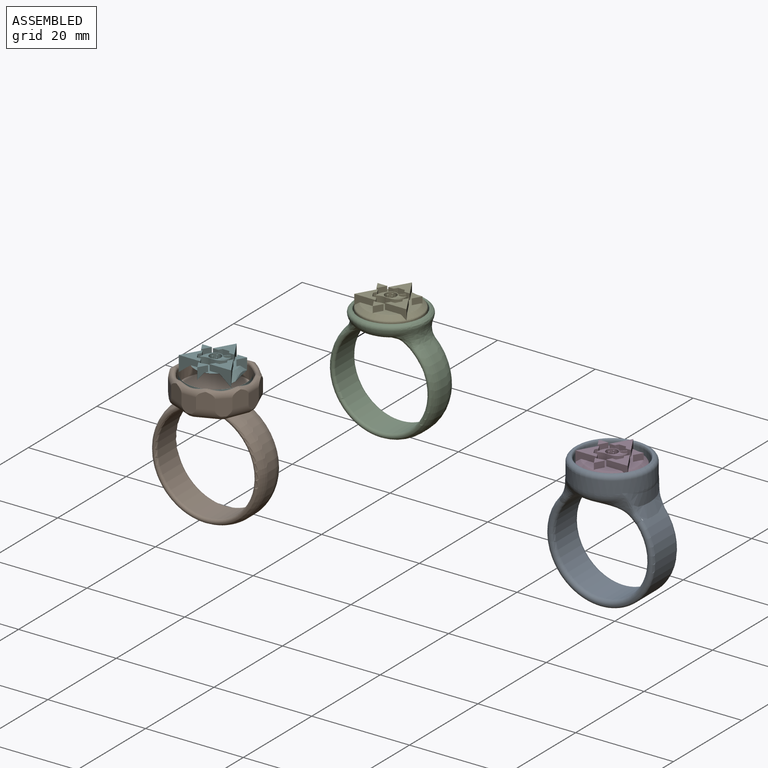
[diagram: assembled view]
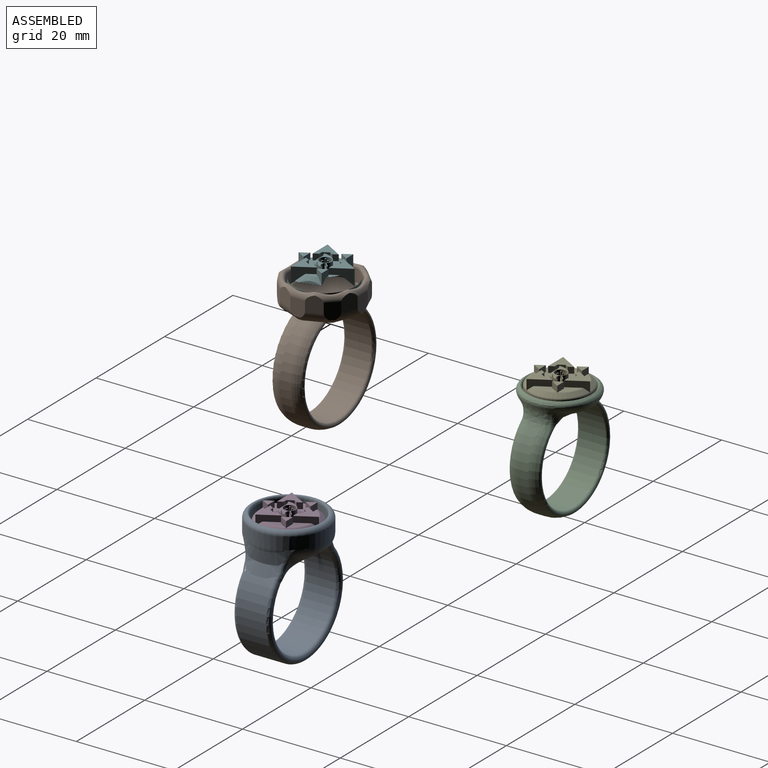
[diagram: assembled view, second angle]
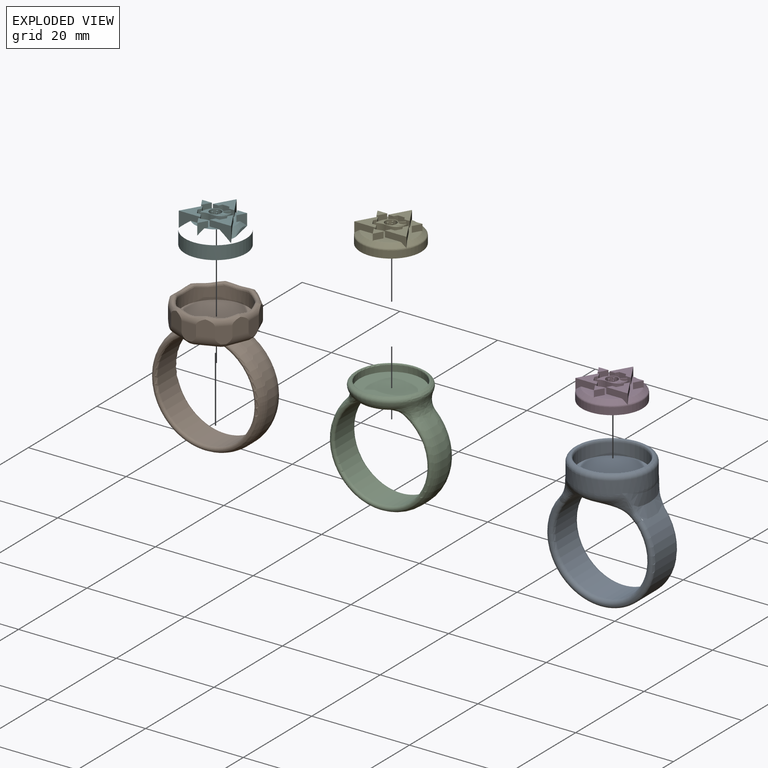
[diagram: exploded view]
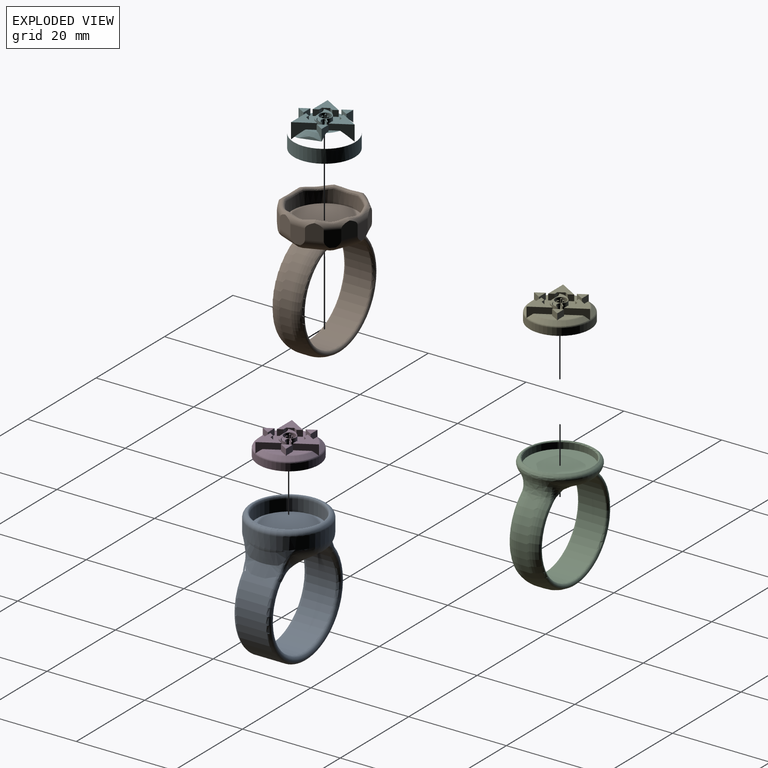
[diagram: exploded view, second angle]
ASSEMBLY  parts=6 mates=3
PART A: 36 faces, bbox 23.8x27.6x19.4 mm
  f0: torus R=10.5mm, axis (0,0,1), area 0.9mm2, adj f1,f34,f35
  f1: bspline ~15.54x3.42mm, area 16.6mm2, adj f0,f2,f31,f32,f33,f35
  f2: torus R=10.5mm, axis (0,0,1), area 0.9mm2, adj f1,f3,f35
  f3: bspline ~2.02x1.49mm, area 2.7mm2, adj f2,f4,f30,f31
  f4: torus R=10.25mm, axis (0,0,-1), area 109.3mm2, adj f3,f5,f34,f35
  f5: cylinder r=11mm len=22mm, axis (0,0,-1), area 297.3mm2, adj f4,f6,f29,f30
  f6: torus R=10.25mm, axis (0,0,-1), area 109.4mm2, adj f5,f7,f28,f35
  f7: bspline ~2.02x1.49mm, area 2.7mm2, adj f6,f8,f27,f29
  f8: bspline ~1.04x0.99mm, area 0.1mm2, adj f7,f9,f25,f29
  f9: bspline ~5.26x2.51mm, area 3.3mm2, adj f8,f10,f14,f29
  f10: bspline ~18.29x7.94mm, area 20.3mm2, adj f9,f11,f13,f14,f25
  f11: bspline ~5.11x2.41mm, area 3.3mm2, adj f10,f12,f14,f30
  f12: bspline ~0.83x0.75mm, area 0.1mm2, adj f11,f25,f28,f30
  f13: torus R=5.33mm, axis (0,-1,0), area 132.7mm2, adj f10,f14
  f14: cylinder r=7.83mm len=15.65mm, axis (0,1,0), area 122.5mm2, adj f9,f10,f11,f13,f15,f16,f17,f18
  f15: bspline ~5.26x2.51mm, area 3.3mm2, adj f14,f30,f31,f32
  f16: torus R=5.33mm, axis (0,-1,0), area 103mm2, adj f14,f30
  f17: torus R=5.33mm, axis (0,-1,0), area 103mm2, adj f14,f29
  f18: bspline ~5.11x2.41mm, area 3.3mm2, adj f14,f29,f32,f33
  f19: torus R=5.33mm, axis (0,-1,0), area 132.7mm2, adj f14,f32
  f20: torus R=6.83mm, axis (0,-1,0), area 63.6mm2, adj f14,f21
  f21: torus R=6.98mm, axis (0,1,0), area 17.9mm2, adj f20,f22
  f22: torus R=7.62mm, axis (0,-1,0), area 17.3mm2, adj f21,f23
  f23: cylinder r=6.62mm len=13.25mm, axis (0,1,0), area 99.9mm2, adj f22,f24
  f24: plane 13.25x13.25mm, normal (0,-1,0), area 137.9mm2, adj f23
  f25: bspline ~15.55x3.43mm, area 16.6mm2, adj f8,f10,f12,f26,f27,f35
  f26: torus R=10.5mm, axis (0,0,1), area 0.9mm2, adj f25,f28,f35
  f27: torus R=10.5mm, axis (0,0,1), area 0.9mm2, adj f7,f25,f35
  f28: bspline ~2.02x1.49mm, area 2.6mm2, adj f6,f12,f26,f30
  f29: bspline ~19.27x5.81mm, area 37.8mm2, adj f5,f7,f8,f9,f14,f17,f18,f33
  f30: bspline ~19.27x5.81mm, area 37.8mm2, adj f3,f5,f11,f12,f14,f15,f16,f28
  f31: bspline ~1.04x0.99mm, area 0.1mm2, adj f1,f3,f15,f30
  f32: bspline ~18.29x7.94mm, area 20.3mm2, adj f1,f14,f15,f18,f19
  f33: bspline ~0.83x0.75mm, area 0.1mm2, adj f1,f18,f29,f34
  f34: bspline ~2.02x1.49mm, area 2.6mm2, adj f0,f4,f29,f33
  f35: cylinder r=9.5mm len=19mm, axis (0,0,-1), area 392.3mm2, adj f0,f1,f2,f4,f6,f25,f26,f27
PART B: 64 faces, bbox 25.4x29.6x16.9 mm
  f0: plane 9.19x2.96mm, normal (0,1,0), area 9.8mm2, adj f16,f18,f20,f32,f33,f35,f37
  f1: plane 0.28x0.06mm, normal (0,1,0), area 0mm2, adj f3,f37,f39
  f2: plane 9.66x3.44mm, normal (0,1,0), area 9.8mm2, adj f17,f21,f23,f34,f36,f38,f39
  f3: cylinder r=11.5mm len=23mm, axis (0,0,-1), area 106mm2, adj f1,f13,f16,f17,f32,f34,f37,f39
  f4: cylinder r=10mm len=20mm, axis (0,0,-1), area 347.8mm2, adj f18,f19,f20,f21,f22,f23
  f5: plane 3.75x3.42mm, normal (0,0,1), area 9mm2, adj f25,f30,f36,f38,f46,f61
  f6: plane 3.75x2.55mm, normal (-0.71,0,0.71), area 9mm2, adj f24,f30,f38,f39,f44,f60
  f7: plane 3.31x2.98mm, normal (-1,0,0), area 9mm2, adj f24,f29,f37,f39,f42,f59
  f8: plane 3.75x2.55mm, normal (-0.71,0,-0.71), area 9mm2, adj f27,f29,f35,f37,f40,f58
  f9: plane 3.75x3.42mm, normal (0,0,-1), area 9mm2, adj f27,f28,f33,f35,f41,f57
  f10: plane 3.75x2.55mm, normal (0.71,0,-0.71), area 9mm2, adj f26,f28,f32,f33,f43,f56
  f11: plane 3.31x2.98mm, normal (1,0,0), area 9mm2, adj f26,f31,f32,f34,f45,f62
  f12: plane 3.75x2.55mm, normal (0.71,0,0.71), area 9mm2, adj f25,f31,f34,f36,f47,f63
  f13: plane 0.28x0.06mm, normal (0,1,0), area 0mm2, adj f3,f32,f34
  f14: cylinder r=6.62mm len=13.25mm, axis (0,1,0), area 113mm2, adj f15,f48,f49,f50,f51,f52,f53,f54
  f15: plane 13.25x13.25mm, normal (0,-1,0), area 137.9mm2, adj f14
  f16: torus R=7.5mm, axis (0,0,-1), area 130.2mm2, adj f0,f3,f19,f32,f37
  f17: torus R=7.5mm, axis (0,0,1), area 130.2mm2, adj f2,f3,f22,f34,f39
  f18: bspline ~4.43x1.93mm, area 1.6mm2, adj f0,f4,f19
  f19: torus R=10.5mm, axis (0,0,-1), area 73.7mm2, adj f4,f16,f18,f20
  f20: bspline ~4.43x1.93mm, area 1.6mm2, adj f0,f4,f19
  f21: bspline ~4.43x1.93mm, area 1.6mm2, adj f2,f4,f22
  f22: torus R=10.5mm, axis (0,0,-1), area 73.7mm2, adj f4,f17,f21,f23
  f23: bspline ~4.43x1.93mm, area 1.6mm2, adj f2,f4,f22
  f24: plane 3.21x2.99mm, normal (-0.92,0,0.38), area 9.2mm2, adj f6,f7,f39,f42,f44
  f25: plane 3.21x2.99mm, normal (0.38,0,0.92), area 9.2mm2, adj f5,f12,f36,f46,f47
  f26: plane 3.21x2.99mm, normal (0.92,0,-0.38), area 9.2mm2, adj f10,f11,f32,f43,f45
  f27: plane 3.21x2.99mm, normal (-0.38,0,-0.92), area 9.2mm2, adj f8,f9,f35,f40,f41
  f28: plane 3.21x2.99mm, normal (0.38,0,-0.92), area 9.2mm2, adj f9,f10,f33,f41,f43
  f29: plane 3.21x2.99mm, normal (-0.92,0,-0.38), area 9.2mm2, adj f7,f8,f37,f40,f42
  f30: plane 3.21x2.99mm, normal (-0.38,0,0.92), area 9.2mm2, adj f5,f6,f38,f44,f46
  f31: plane 3.21x2.99mm, normal (0.92,0,0.38), area 9.2mm2, adj f11,f12,f34,f45,f47
  f32: cylinder r=2.5mm len=5.59mm, axis (-0.38,0,-0.92), area 16.6mm2, adj f0,f3,f10,f11,f13,f16,f26,f56
  f33: cylinder r=2.5mm len=5.59mm, axis (-0.92,0,-0.38), area 17.7mm2, adj f0,f9,f10,f28,f56,f57
  f34: cylinder r=2.5mm len=5.59mm, axis (0.38,0,-0.92), area 16.6mm2, adj f2,f3,f11,f12,f13,f17,f31,f62
  f35: cylinder r=2.5mm len=5.59mm, axis (-0.92,0,0.38), area 17.7mm2, adj f0,f8,f9,f27,f57,f58
  f36: cylinder r=2.5mm len=5.59mm, axis (0.92,0,-0.38), area 17.7mm2, adj f2,f5,f12,f25,f61,f63
  f37: cylinder r=2.5mm len=5.59mm, axis (-0.38,0,0.92), area 16.6mm2, adj f0,f1,f3,f7,f8,f16,f29,f58
  f38: cylinder r=2.5mm len=5.59mm, axis (0.92,0,0.38), area 17.7mm2, adj f2,f5,f6,f30,f60,f61
  f39: cylinder r=2.5mm len=5.59mm, axis (0.38,0,0.92), area 16.6mm2, adj f1,f2,f3,f6,f7,f17,f24,f59
  f40: cylinder r=1.5mm len=5.03mm, axis (-0.71,0,0.71), area 5.4mm2, adj f8,f27,f29,f41,f42,f55
  f41: cylinder r=1.5mm len=5.97mm, axis (-1,0,0), area 5.4mm2, adj f9,f27,f28,f40,f43,f54
  f42: cylinder r=1.5mm len=5.97mm, axis (0,0,1), area 5.4mm2, adj f7,f24,f29,f40,f44,f53
  f43: cylinder r=1.5mm len=5.03mm, axis (-0.71,0,-0.71), area 5.4mm2, adj f10,f26,f28,f41,f45,f52
  f44: cylinder r=1.5mm len=5.03mm, axis (0.71,0,0.71), area 5.4mm2, adj f6,f24,f30,f42,f46,f51
  f45: cylinder r=1.5mm len=5.97mm, axis (0,0,-1), area 5.4mm2, adj f11,f26,f31,f43,f47,f50
  f46: cylinder r=1.5mm len=5.97mm, axis (1,0,0), area 5.4mm2, adj f5,f25,f30,f44,f47,f49
  f47: cylinder r=1.5mm len=5.03mm, axis (0.71,0,-0.71), area 5.4mm2, adj f12,f25,f31,f45,f46,f48
  f48: bspline ~4.7x4.56mm, area 6.1mm2, adj f14,f47,f49,f50
  f49: bspline ~6.28x1.63mm, area 6.1mm2, adj f14,f46,f48,f51
  f50: bspline ~6.28x1.63mm, area 6.1mm2, adj f14,f45,f48,f52
  f51: bspline ~4.7x4.56mm, area 6.1mm2, adj f14,f44,f49,f53
  f52: bspline ~4.7x4.56mm, area 6.1mm2, adj f14,f43,f50,f54
  f53: bspline ~6.28x1.63mm, area 6.1mm2, adj f14,f42,f51,f55
  f54: bspline ~6.28x1.63mm, area 6.1mm2, adj f14,f41,f52,f55
  f55: bspline ~4.7x4.56mm, area 6.1mm2, adj f14,f40,f53,f54
  f56: bspline ~1.91x1.91mm, area 1mm2, adj f10,f32,f33
  f57: bspline ~2.16x1.33mm, area 1mm2, adj f9,f33,f35
  f58: bspline ~1.91x1.91mm, area 1mm2, adj f8,f35,f37
  f59: bspline ~2.16x1.33mm, area 0.9mm2, adj f7,f37,f39
  f60: bspline ~1.91x1.91mm, area 1mm2, adj f6,f38,f39
  f61: bspline ~2.16x1.33mm, area 0.9mm2, adj f5,f36,f38
  f62: bspline ~2.16x1.33mm, area 0.9mm2, adj f11,f32,f34
  f63: bspline ~1.91x1.91mm, area 1mm2, adj f12,f34,f36
PART C: 78 faces, bbox 23.8x24.4x16.1 mm
  f0: plane 3.39x0.95mm, normal (0,1,0), area 1.6mm2, adj f23,f44,f45
  f1: cylinder r=11mm len=22mm, axis (0,0,-1), area 89.8mm2, adj f6,f7,f35,f54
  f2: cylinder r=9.5mm len=19mm, axis (0,0,-1), area 330.6mm2, adj f8,f9,f10,f11,f12,f13
  f3: plane 3.37x0.93mm, normal (0,1,0), area 1.6mm2, adj f16,f26,f63
  f4: cylinder r=6.42mm len=12.85mm, axis (0,1,0), area 50.5mm2, adj f5,f64
  f5: plane 12.85x12.85mm, normal (0,-1,0), area 129.7mm2, adj f4
  f6: torus R=7mm, axis (0,0,-1), area 109.8mm2, adj f1,f9,f33,f34,f55,f56
  f7: torus R=7mm, axis (0,0,1), area 109.8mm2, adj f1,f12,f36,f37,f52,f53
  f8: bspline ~4.32x1.91mm, area 0.6mm2, adj f2,f9,f59,f62,f63
  f9: torus R=10mm, axis (0,0,-1), area 65.2mm2, adj f2,f6,f8,f10,f30,f31,f32,f57
  f10: bspline ~4.32x1.91mm, area 0.7mm2, adj f2,f9,f26,f27,f28
  f11: bspline ~4.32x1.91mm, area 0.6mm2, adj f2,f12,f45,f46,f47
  f12: torus R=10mm, axis (0,0,-1), area 65.2mm2, adj f2,f7,f11,f13,f38,f39,f41,f49
  f13: bspline ~4.32x1.91mm, area 0.6mm2, adj f2,f12,f40,f43,f44
  f14: bspline ~3.64x3.23mm, area 0.9mm2, adj f15,f16,f31,f71
  f15: bspline ~3.84x3.37mm, area 1.3mm2, adj f14,f17,f32,f33,f69
  f16: torus R=4.92mm, axis (0,-1,0), area 30.4mm2, adj f3,f14,f18,f27,f30,f60,f62,f73
  f17: bspline ~3.27x2.42mm, area 1mm2, adj f15,f19,f34,f35,f36,f67
  f18: bspline ~2.94x2.55mm, area 0.9mm2, adj f16,f20,f58,f75
  f19: bspline ~4.19x3.46mm, area 1.3mm2, adj f17,f21,f37,f38,f66
  f20: bspline ~4.19x3.46mm, area 1.3mm2, adj f18,f22,f56,f57,f77
  f21: bspline ~2.94x2.55mm, area 0.9mm2, adj f19,f23,f39,f68
  f22: bspline ~3.27x2.42mm, area 1mm2, adj f20,f24,f53,f54,f55,f76
  f23: torus R=4.92mm, axis (0,-1,0), area 30.4mm2, adj f0,f21,f25,f41,f43,f46,f49,f70
  f24: bspline ~3.84x3.37mm, area 1.3mm2, adj f22,f25,f51,f52,f74
  f25: bspline ~3.64x3.23mm, area 0.9mm2, adj f23,f24,f50,f72
  f26: bspline ~2.65x1.43mm, area 0.7mm2, adj f3,f10,f27
  f27: bspline ~2.34x1.54mm, area 1.5mm2, adj f10,f16,f26,f29
  f28: bspline ~0.54x0.43mm, area 0.1mm2, adj f10,f29,f30
  f29: bspline ~1.45x0.96mm, area 0.2mm2, adj f27,f28,f30
  f30: bspline ~4.58x3.05mm, area 6.1mm2, adj f9,f16,f28,f29,f31
  f31: bspline ~3.44x2.32mm, area 2.2mm2, adj f9,f14,f30,f32
  f32: bspline ~3.61x1.8mm, area 1.7mm2, adj f9,f15,f31,f33
  f33: bspline ~3.63x2.61mm, area 6.7mm2, adj f6,f15,f32,f34
  f34: bspline ~3.68x2.06mm, area 2mm2, adj f6,f17,f33,f35
  f35: bspline ~3.83x3.62mm, area 5.6mm2, adj f1,f17,f34,f36
  f36: bspline ~3.68x2.06mm, area 2mm2, adj f7,f17,f35,f37
  f37: bspline ~3.72x3.22mm, area 6.7mm2, adj f7,f19,f36,f38
  f38: bspline ~3.61x1.8mm, area 1.7mm2, adj f12,f19,f37,f39
  f39: bspline ~3.35x2.1mm, area 2.2mm2, adj f12,f21,f38,f41
  f40: bspline ~0.54x0.43mm, area 0.1mm2, adj f13,f41,f42
  f41: bspline ~4.43x2.87mm, area 6.1mm2, adj f12,f23,f39,f40,f42
  f42: bspline ~1.45x0.96mm, area 0.2mm2, adj f40,f41,f43
  f43: bspline ~2.18x1.55mm, area 1.5mm2, adj f13,f23,f42,f44
  f44: bspline ~2.67x1.44mm, area 0.7mm2, adj f0,f13,f43
  f45: bspline ~2.65x1.43mm, area 0.7mm2, adj f0,f11,f46
  f46: bspline ~2.34x1.54mm, area 1.5mm2, adj f11,f23,f45,f48
  f47: bspline ~0.54x0.43mm, area 0.1mm2, adj f11,f48,f49
  f48: bspline ~1.45x0.96mm, area 0.2mm2, adj f46,f47,f49
  f49: bspline ~4.58x3.05mm, area 6.1mm2, adj f12,f23,f47,f48,f50
  f50: bspline ~3.44x2.32mm, area 2.2mm2, adj f12,f25,f49,f51
  f51: bspline ~3.61x1.8mm, area 1.7mm2, adj f12,f24,f50,f52
  f52: bspline ~3.63x2.61mm, area 6.7mm2, adj f7,f24,f51,f53
  f53: bspline ~3.68x2.06mm, area 2mm2, adj f7,f22,f52,f54
  f54: bspline ~3.83x3.62mm, area 5.6mm2, adj f1,f22,f53,f55
  f55: bspline ~3.68x2.06mm, area 2mm2, adj f6,f22,f54,f56
  f56: bspline ~3.72x3.22mm, area 6.7mm2, adj f6,f20,f55,f57
  f57: bspline ~3.61x1.8mm, area 1.7mm2, adj f9,f20,f56,f58
  f58: bspline ~3.35x2.1mm, area 2.2mm2, adj f9,f18,f57,f60
  f59: bspline ~0.54x0.43mm, area 0.1mm2, adj f8,f60,f61
  f60: bspline ~4.58x3.05mm, area 6.1mm2, adj f9,f16,f58,f59,f61
  f61: bspline ~1.45x0.96mm, area 0.2mm2, adj f59,f60,f62
  f62: bspline ~2.18x1.55mm, area 1.5mm2, adj f8,f16,f61,f63
  f63: bspline ~2.67x1.44mm, area 0.7mm2, adj f3,f8,f62
  f64: torus R=6.68mm, axis (0,-1,0), area 16.1mm2, adj f4,f65
  f65: cone r=6.68mm half-angle=56.3deg, axis (0,1,0), area 18.2mm2, adj f64,f66,f67,f68,f69,f70,f71,f72
  f66: bspline ~3.47x1.72mm, area 2.8mm2, adj f19,f65,f67,f68
  f67: bspline ~3.33x0.82mm, area 2.4mm2, adj f17,f65,f66,f69
  f68: bspline ~1.42x1.22mm, area 1.1mm2, adj f21,f65,f66,f70
  f69: bspline ~3.71x1.75mm, area 2.8mm2, adj f15,f65,f67,f71
  f70: torus R=6.58mm, axis (0,1,0), area 11.8mm2, adj f23,f65,f68,f72
  f71: bspline ~2.3x1.96mm, area 1.1mm2, adj f14,f65,f69,f73
  f72: bspline ~2.3x1.96mm, area 1.1mm2, adj f25,f65,f70,f74
  f73: torus R=6.58mm, axis (0,1,0), area 11.8mm2, adj f16,f65,f71,f75
  f74: bspline ~3.71x1.75mm, area 2.8mm2, adj f24,f65,f72,f76
  f75: bspline ~1.42x1.22mm, area 1.1mm2, adj f18,f65,f73,f77
  f76: bspline ~3.33x0.82mm, area 2.4mm2, adj f22,f65,f74,f77
  f77: bspline ~3.47x1.72mm, area 2.8mm2, adj f20,f65,f75,f76
PART D: 76 faces, bbox 13.4x13.4x3.8 mm
  f0: cone r=5.2mm half-angle=49.6deg, axis (0,0,-1), area 11.1mm2, adj f6,f27,f38,f39,f69,f74,f75
  f1: cone r=5.2mm half-angle=49.6deg, axis (0,0,-1), area 11.1mm2, adj f19,f21,f34,f35,f69,f70,f71
  f2: plane 10.11x10.06mm, normal (0,0,1), area 51.1mm2, adj f5,f6,f7,f8,f9,f10,f11,f13
  f3: cylinder r=6.2mm len=12.4mm, axis (0,0,-1), area 57.1mm2, adj f4,f69
  f4: plane 12.4x12.4mm, normal (0,0,-1), area 120.8mm2, adj f3
  f5: plane 3.83x2.22mm, normal (0.87,0.5,0), area 6mm2, adj f2,f6,f11,f12,f68,f69,f73
  f6: plane 3.83x2.22mm, normal (-0.87,0.5,0), area 6mm2, adj f0,f2,f5,f7,f12,f69,f74
  f7: plane 1.25x1.1mm, normal (0,-1,0), area 1.4mm2, adj f2,f6,f8,f12
  f8: plane 1.25x0.69mm, normal (0.87,-0.5,0), area 1mm2, adj f2,f7,f9,f12
  f9: plane 1.4x1.25mm, normal (0,-1,0), area 1.8mm2, adj f2,f8,f10,f12
  f10: plane 1.25x0.69mm, normal (-0.87,-0.5,0), area 1mm2, adj f2,f9,f11,f12
  f11: plane 1.25x1.1mm, normal (0,-1,0), area 1.4mm2, adj f2,f5,f10,f12
  f12: plane 4.4x3.81mm, normal (0,0,1), area 7.1mm2, adj f5,f6,f7,f8,f9,f10,f11
  f13: plane 3.83x2.22mm, normal (0.87,0.5,0), area 6mm2, adj f2,f14,f19,f20,f68,f69,f72
  f14: plane 1.25x0.95mm, normal (-0.87,0.5,0), area 1.4mm2, adj f2,f13,f15,f20
  f15: plane 1.25x0.69mm, normal (-0.87,-0.5,0), area 1mm2, adj f2,f14,f16,f20
  f16: plane 1.25x1.21mm, normal (-0.87,0.5,0), area 1.8mm2, adj f2,f15,f17,f20
  f17: plane 1.25x0.8mm, normal (0,1,0), area 1mm2, adj f2,f16,f18,f20
  f18: plane 1.25x0.95mm, normal (-0.87,0.5,0), area 1.4mm2, adj f2,f17,f19,f20
  f19: plane 4.42x2.17mm, normal (0,-1,0), area 6mm2, adj f1,f2,f13,f18,f20,f69,f71
  f20: plane 4.4x3.81mm, normal (0,0,1), area 7.1mm2, adj f13,f14,f15,f16,f17,f18,f19
  f21: plane 4.42x2.17mm, normal (0,-1,0), area 6mm2, adj f1,f2,f22,f27,f28,f69,f70
  f22: plane 1.25x0.95mm, normal (0.87,0.5,0), area 1.4mm2, adj f2,f21,f23,f28
  f23: plane 1.25x0.8mm, normal (0,1,0), area 1mm2, adj f2,f22,f24,f28
  f24: plane 1.25x1.21mm, normal (0.87,0.5,0), area 1.8mm2, adj f2,f23,f25,f28
  f25: plane 1.25x0.69mm, normal (0.87,-0.5,0), area 1mm2, adj f2,f24,f26,f28
  f26: plane 1.25x0.95mm, normal (0.87,0.5,0), area 1.4mm2, adj f2,f25,f27,f28
  f27: plane 3.83x2.22mm, normal (-0.87,0.5,0), area 6mm2, adj f0,f2,f21,f26,f28,f69,f75
  f28: plane 4.4x3.81mm, normal (0,0,1), area 7.1mm2, adj f21,f22,f23,f24,f25,f26,f27
  f29: plane 1.73x1.25mm, normal (-0.87,-0.5,0), area 2.5mm2, adj f2,f30,f31,f32
  f30: plane 1.75x1.37mm, normal (0.87,-0.5,0), area 2.5mm2, adj f2,f29,f31,f32,f68,f72
  f31: plane 2.01x1.37mm, normal (0,1,0), area 2.5mm2, adj f2,f29,f30,f32,f68,f73
  f32: plane 2x1.73mm, normal (0,0,1), area 1.7mm2, adj f29,f30,f31
  f33: plane 2x1.25mm, normal (0,1,0), area 2.5mm2, adj f2,f34,f35,f36
  f34: plane 1.75x1.37mm, normal (-0.87,-0.5,0), area 2.5mm2, adj f1,f2,f33,f35,f36,f70
  f35: plane 1.75x1.37mm, normal (0.87,-0.5,0), area 2.5mm2, adj f1,f2,f33,f34,f36,f71
  f36: plane 2x1.73mm, normal (0,0,1), area 1.7mm2, adj f33,f34,f35
  f37: plane 2x1.73mm, normal (0,0,1), area 1.7mm2, adj f38,f39,f40
  f38: plane 1.75x1.37mm, normal (-0.87,-0.5,0), area 2.5mm2, adj f0,f2,f37,f39,f40,f75
  f39: plane 2.01x1.37mm, normal (0,1,0), area 2.5mm2, adj f0,f2,f37,f38,f40,f74
  f40: plane 1.73x1.25mm, normal (0.87,-0.5,0), area 2.5mm2, adj f2,f37,f38,f39
  f41: cylinder r=0.9mm len=1.48mm, axis (0,0,-1), area 2.4mm2, adj f2,f42,f54,f55
  f42: plane 1.25x0.11mm, normal (-0.72,0.7,0), area 0.2mm2, adj f2,f41,f43,f55
  f43: cylinder r=1.15mm len=2.3mm, axis (0,0,-1), area 8.8mm2, adj f2,f42,f44,f55
  f44: plane 1.25x1.04mm, normal (0.72,-0.7,0), area 1.8mm2, adj f2,f43,f45,f55
  f45: plane 1.25x0.11mm, normal (0.7,0.72,0), area 0.2mm2, adj f2,f44,f46,f55
  f46: plane 1.25x0.92mm, normal (-0.72,0.7,0), area 1.6mm2, adj f2,f45,f47,f55
  f47: cylinder r=1.3mm len=1.73mm, axis (0,0,-1), area 2.4mm2, adj f2,f46,f48,f55
  f48: cylinder r=3mm len=2.69mm, axis (0,0,-1), area 3.8mm2, adj f2,f47,f49,f55
  f49: cylinder r=2.6mm len=1.77mm, axis (0,0,-1), area 2.3mm2, adj f2,f48,f50,f55
  f50: cylinder r=1.3mm len=1.25mm, axis (0,0,-1), area 0.3mm2, adj f2,f49,f51,f55
  f51: plane 1.25x0.8mm, normal (0,-1,0), area 1mm2, adj f2,f50,f52,f55
  f52: cylinder r=2.1mm len=1.9mm, axis (0,0,-1), area 3.4mm2, adj f2,f51,f53,f55
  f53: cylinder r=1.6mm len=1.53mm, axis (0,0,-1), area 2.4mm2, adj f2,f52,f54,f55
  f54: cylinder r=1.6mm len=1.73mm, axis (0,0,-1), area 3.1mm2, adj f2,f41,f53,f55
  f55: plane 4.71x3.5mm, normal (0,0,1), area 4.6mm2, adj f41,f42,f43,f44,f45,f46,f47,f48
  f56: cylinder r=0.15mm len=1.25mm, axis (0,0,-1), area 0.9mm2, adj f2,f57,f58,f59
  f57: cylinder r=0.15mm len=1.25mm, axis (0,0,-1), area 0.3mm2, adj f2,f56,f58,f59
  f58: cylinder r=0.3mm len=1.25mm, axis (0,0,-1), area 0.6mm2, adj f2,f56,f57,f59
  f59: plane 0.45x0.3mm, normal (0,0,1), area 0.1mm2, adj f56,f57,f58
  f60: cylinder r=0.15mm len=1.25mm, axis (0,0,-1), area 0.9mm2, adj f2,f61,f62,f63
  f61: cylinder r=0.15mm len=1.25mm, axis (0,0,-1), area 0.3mm2, adj f2,f60,f62,f63
  f62: cylinder r=0.3mm len=1.25mm, axis (0,0,-1), area 0.6mm2, adj f2,f60,f61,f63
  f63: plane 0.43x0.38mm, normal (0,0,1), area 0.1mm2, adj f60,f61,f62
  f64: cylinder r=0.15mm len=1.25mm, axis (0,0,-1), area 0.9mm2, adj f2,f65,f66,f67
  f65: cylinder r=0.15mm len=1.25mm, axis (0,0,-1), area 0.3mm2, adj f2,f64,f66,f67
  f66: cylinder r=0.3mm len=1.25mm, axis (0,0,-1), area 0.6mm2, adj f2,f64,f65,f67
  f67: plane 0.49x0.32mm, normal (0,0,1), area 0.1mm2, adj f64,f65,f66
  f68: cone r=5.2mm half-angle=49.6deg, axis (0,0,-1), area 11.1mm2, adj f5,f13,f30,f31,f69,f72,f73
  f69: torus R=5.8mm, axis (0,0,1), area 13.4mm2, adj f0,f1,f3,f5,f6,f13,f19,f21
  f70: torus R=5.05mm, axis (0,0,1), area 1.3mm2, adj f1,f2,f21,f34
  f71: torus R=5.05mm, axis (0,0,1), area 1.3mm2, adj f1,f2,f19,f35
  f72: torus R=5.05mm, axis (0,0,1), area 1.3mm2, adj f2,f13,f30,f68
  f73: torus R=5.05mm, axis (0,0,1), area 1.3mm2, adj f2,f5,f31,f68
  f74: torus R=5.05mm, axis (0,0,1), area 1.3mm2, adj f0,f2,f6,f39
  f75: torus R=5.05mm, axis (0,0,1), area 1.3mm2, adj f0,f2,f27,f38
PART E: same geometry as D
PART F: 67 faces, bbox 12.5x12.5x6 mm
  f0: plane 8.5x8.27mm, normal (0,0,1), area 34.1mm2, adj f3,f4,f5,f6,f7,f8,f9,f11
  f1: cylinder r=6.25mm len=12.5mm, axis (0,0,-1), area 108mm2, adj f2,f66
  f2: plane 12.5x12.5mm, normal (0,0,-1), area 122.7mm2, adj f1
  f3: plane 3.81x3.18mm, normal (0.87,0.5,0), area 7.8mm2, adj f0,f4,f9,f10,f66
  f4: plane 3.81x3.18mm, normal (-0.87,0.5,0), area 7.8mm2, adj f0,f3,f5,f10,f66
  f5: plane 1.25x1.1mm, normal (0,-1,0), area 1.4mm2, adj f0,f4,f6,f10
  f6: plane 1.25x0.69mm, normal (0.87,-0.5,0), area 1mm2, adj f0,f5,f7,f10
  f7: plane 1.4x1.25mm, normal (0,-1,0), area 1.8mm2, adj f0,f6,f8,f10
  f8: plane 1.25x0.69mm, normal (-0.87,-0.5,0), area 1mm2, adj f0,f7,f9,f10
  f9: plane 1.25x1.1mm, normal (0,-1,0), area 1.4mm2, adj f0,f3,f8,f10
  f10: plane 4.4x3.81mm, normal (0,0,1), area 7.1mm2, adj f3,f4,f5,f6,f7,f8,f9
  f11: plane 3.81x3.18mm, normal (0.87,0.5,0), area 7.8mm2, adj f0,f12,f17,f18,f66
  f12: plane 1.25x0.95mm, normal (-0.87,0.5,0), area 1.4mm2, adj f0,f11,f13,f18
  f13: plane 1.25x0.69mm, normal (-0.87,-0.5,0), area 1mm2, adj f0,f12,f14,f18
  f14: plane 1.25x1.21mm, normal (-0.87,0.5,0), area 1.8mm2, adj f0,f13,f15,f18
  f15: plane 1.25x0.8mm, normal (0,1,0), area 1mm2, adj f0,f14,f16,f18
  f16: plane 1.25x0.95mm, normal (-0.87,0.5,0), area 1.4mm2, adj f0,f15,f17,f18
  f17: plane 4.4x3.18mm, normal (0,-1,0), area 7.8mm2, adj f0,f11,f16,f18,f66
  f18: plane 4.4x3.81mm, normal (0,0,1), area 7.1mm2, adj f11,f12,f13,f14,f15,f16,f17
  f19: plane 4.4x3.18mm, normal (0,-1,0), area 7.8mm2, adj f0,f20,f25,f26,f66
  f20: plane 1.25x0.95mm, normal (0.87,0.5,0), area 1.4mm2, adj f0,f19,f21,f26
  f21: plane 1.25x0.8mm, normal (0,1,0), area 1mm2, adj f0,f20,f22,f26
  f22: plane 1.25x1.21mm, normal (0.87,0.5,0), area 1.8mm2, adj f0,f21,f23,f26
  f23: plane 1.25x0.69mm, normal (0.87,-0.5,0), area 1mm2, adj f0,f22,f24,f26
  f24: plane 1.25x0.95mm, normal (0.87,0.5,0), area 1.4mm2, adj f0,f23,f25,f26
  f25: plane 3.81x3.18mm, normal (-0.87,0.5,0), area 7.8mm2, adj f0,f19,f24,f26,f66
  f26: plane 4.4x3.81mm, normal (0,0,1), area 7.1mm2, adj f19,f20,f21,f22,f23,f24,f25
  f27: plane 1.73x1.25mm, normal (-0.87,-0.5,0), area 2.5mm2, adj f0,f28,f29,f30
  f28: plane 2.32x1.73mm, normal (0.87,-0.5,0), area 3.2mm2, adj f0,f27,f29,f30,f66
  f29: plane 2.32x2mm, normal (0,1,0), area 3.2mm2, adj f0,f27,f28,f30,f66
  f30: plane 2x1.73mm, normal (0,0,1), area 1.7mm2, adj f27,f28,f29
  f31: plane 2x1.25mm, normal (0,1,0), area 2.5mm2, adj f0,f32,f33,f34
  f32: plane 2.32x1.73mm, normal (-0.87,-0.5,0), area 3.2mm2, adj f0,f31,f33,f34,f66
  f33: plane 2.32x1.73mm, normal (0.87,-0.5,0), area 3.2mm2, adj f0,f31,f32,f34,f66
  f34: plane 2x1.73mm, normal (0,0,1), area 1.7mm2, adj f31,f32,f33
  f35: plane 2x1.73mm, normal (0,0,1), area 1.7mm2, adj f36,f37,f38
  f36: plane 2.32x1.73mm, normal (-0.87,-0.5,0), area 3.2mm2, adj f0,f35,f37,f38,f66
  f37: plane 2.32x2mm, normal (0,1,0), area 3.2mm2, adj f0,f35,f36,f38,f66
  f38: plane 1.73x1.25mm, normal (0.87,-0.5,0), area 2.5mm2, adj f0,f35,f36,f37
  f39: cylinder r=0.9mm len=1.48mm, axis (0,0,-1), area 2.4mm2, adj f0,f40,f52,f53
  f40: plane 1.25x0.11mm, normal (-0.72,0.7,0), area 0.2mm2, adj f0,f39,f41,f53
  f41: cylinder r=1.15mm len=2.3mm, axis (0,0,-1), area 8.8mm2, adj f0,f40,f42,f53
  f42: plane 1.25x1.04mm, normal (0.72,-0.7,0), area 1.8mm2, adj f0,f41,f43,f53
  f43: plane 1.25x0.11mm, normal (0.7,0.72,0), area 0.2mm2, adj f0,f42,f44,f53
  f44: plane 1.25x0.92mm, normal (-0.72,0.7,0), area 1.6mm2, adj f0,f43,f45,f53
  f45: cylinder r=1.3mm len=1.73mm, axis (0,0,-1), area 2.4mm2, adj f0,f44,f46,f53
  f46: cylinder r=3mm len=2.69mm, axis (0,0,-1), area 3.8mm2, adj f0,f45,f47,f53
  f47: cylinder r=2.6mm len=1.77mm, axis (0,0,-1), area 2.3mm2, adj f0,f46,f48,f53
  f48: cylinder r=1.3mm len=1.25mm, axis (0,0,-1), area 0.3mm2, adj f0,f47,f49,f53
  f49: plane 1.25x0.8mm, normal (0,-1,0), area 1mm2, adj f0,f48,f50,f53
  f50: cylinder r=2.1mm len=1.9mm, axis (0,0,-1), area 3.4mm2, adj f0,f49,f51,f53
  f51: cylinder r=1.6mm len=1.53mm, axis (0,0,-1), area 2.4mm2, adj f0,f50,f52,f53
  f52: cylinder r=1.6mm len=1.73mm, axis (0,0,-1), area 3.1mm2, adj f0,f39,f51,f53
  f53: plane 4.71x3.5mm, normal (0,0,1), area 4.6mm2, adj f39,f40,f41,f42,f43,f44,f45,f46
  f54: cylinder r=0.15mm len=1.25mm, axis (0,0,-1), area 0.9mm2, adj f0,f55,f56,f57
  f55: cylinder r=0.15mm len=1.25mm, axis (0,0,-1), area 0.3mm2, adj f0,f54,f56,f57
  f56: cylinder r=0.3mm len=1.25mm, axis (0,0,-1), area 0.6mm2, adj f0,f54,f55,f57
  f57: plane 0.45x0.3mm, normal (0,0,1), area 0.1mm2, adj f54,f55,f56
  f58: cylinder r=0.15mm len=1.25mm, axis (0,0,-1), area 0.9mm2, adj f0,f59,f60,f61
  f59: cylinder r=0.15mm len=1.25mm, axis (0,0,-1), area 0.3mm2, adj f0,f58,f60,f61
  f60: cylinder r=0.3mm len=1.25mm, axis (0,0,-1), area 0.6mm2, adj f0,f58,f59,f61
  f61: plane 0.43x0.38mm, normal (0,0,1), area 0.1mm2, adj f58,f59,f60
  f62: cylinder r=0.15mm len=1.25mm, axis (0,0,-1), area 0.9mm2, adj f0,f63,f64,f65
  f63: cylinder r=0.15mm len=1.25mm, axis (0,0,-1), area 0.3mm2, adj f0,f62,f64,f65
  f64: cylinder r=0.3mm len=1.25mm, axis (0,0,-1), area 0.6mm2, adj f0,f62,f63,f65
  f65: plane 0.49x0.32mm, normal (0,0,1), area 0.1mm2, adj f62,f63,f64
  f66: cone r=4.25mm half-angle=45deg, axis (0,0,-1), area 80.8mm2, adj f0,f1,f3,f4,f11,f17,f19,f25
PLACE A rot(axis=(-1,0,0),90deg) t=(41.77,-3.29,-33.31)mm
PLACE B rot(axis=(-1,0,0),90deg) t=(-16.12,-36.53,-20.84)mm
PLACE C rot(axis=(-1,0,0),90deg) t=(-14.69,12.68,-23.94)mm
PLACE D t=(41.77,-3.29,-20.71)mm
PLACE E t=(-14.69,12.68,-12.94)mm
PLACE F t=(-16.12,-36.53,-8.09)mm
MATE fastened C.f4 <-> E.f0  axis (0,0,1) through (-14.69,12.68,-12.94)mm
MATE fastened B.f14 <-> F.f1  axis (0,0,1) through (-16.12,-36.53,-8.09)mm
MATE fastened A.f23 <-> D.f0  axis (0,0,1) through (41.77,-3.29,-20.71)mm
